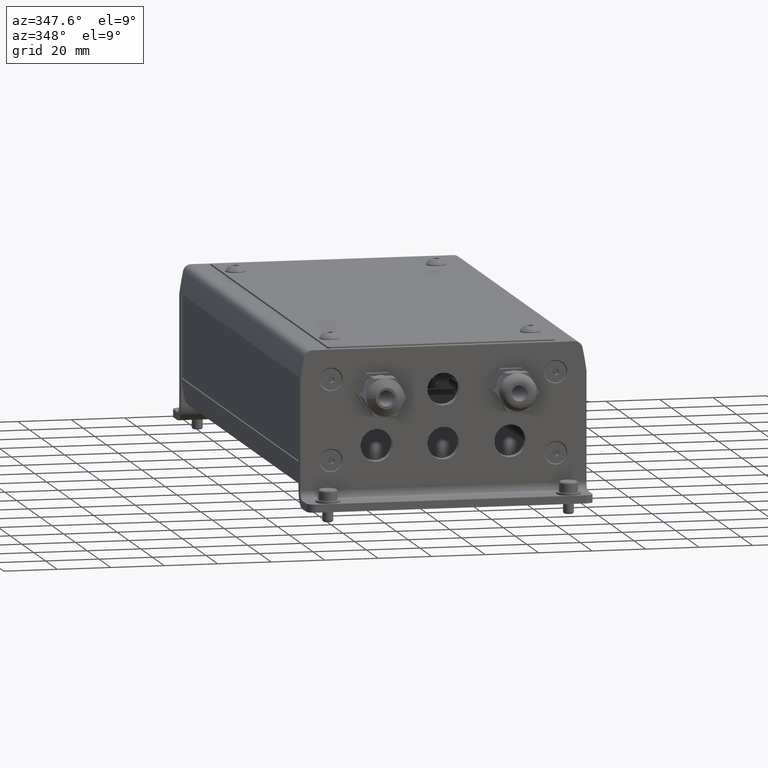
[diagram: clean part render]
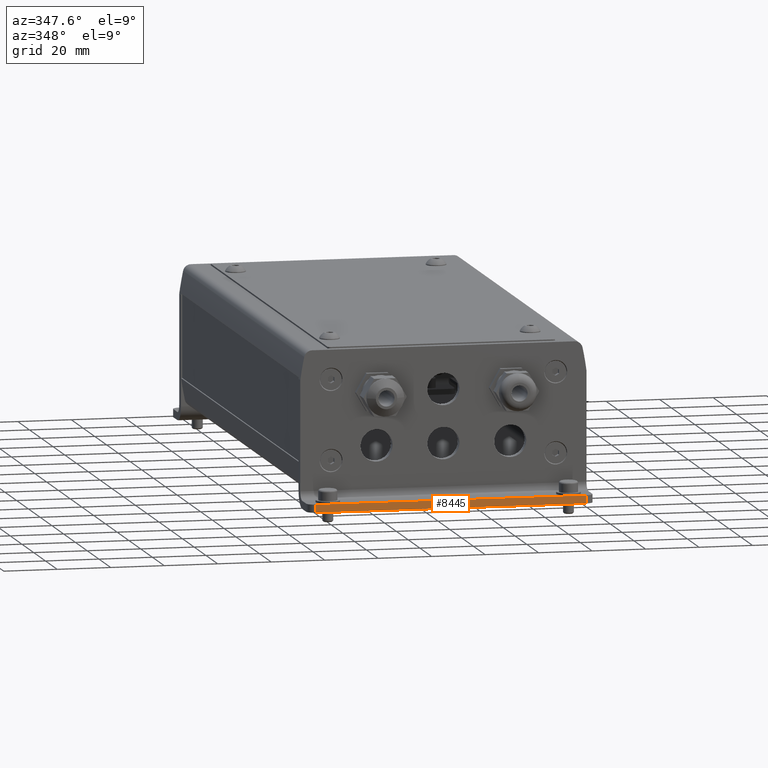
[diagram: same view with one face highlighted and labeled with its STEP entity id]
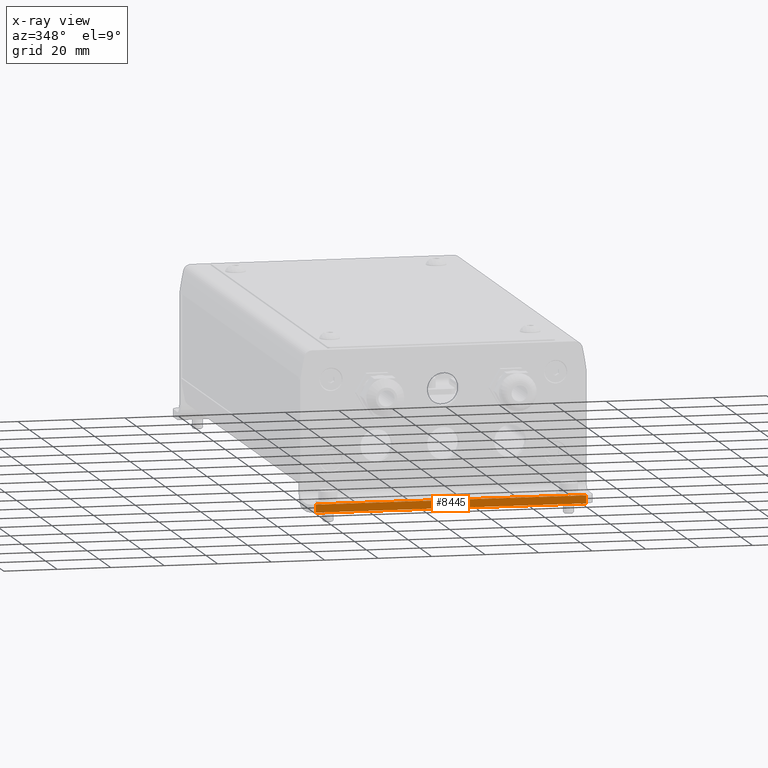
[diagram: x-ray of the same camera — body ghosted, the highlighted face saturated]
A machine part, auxiliary view. The second image highlights one B-rep face of the part: STEP entity #8445.
The next image is the same camera in x-ray: the body ghosted, the highlighted face saturated — about 0% of this face is hidden behind the body in this view.
In plain terms, the highlighted planar face has unit normal (-0, 1, -0).
Its self-contained STEP definition (entity closure, byte-faithful):
#8098=CARTESIAN_POINT('',(49.500000000000270,-24.999999999999581,-14.0));
#8099=VERTEX_POINT('',#8098);
#8107=CARTESIAN_POINT('',(-51.499999999999673,-24.999999999999581,-14.0));
#8108=VERTEX_POINT('',#8107);
#8109=CARTESIAN_POINT('',(49.500000000000270,-24.999999999999581,-14.0));
#8110=DIRECTION('',(-1.0,0.0,0.0));
#8111=VECTOR('',#8110,100.999999999999940);
#8112=LINE('',#8109,#8111);
#8113=EDGE_CURVE('',#8099,#8108,#8112,.T.);
#8404=CARTESIAN_POINT('',(49.500000000000263,-27.999999999999588,-14.0));
#8405=VERTEX_POINT('',#8404);
#8413=CARTESIAN_POINT('',(49.500000000000263,-27.999999999999588,-14.0));
#8414=DIRECTION('',(0.0,1.0,0.0));
#8415=VECTOR('',#8414,3.000000000000007);
#8416=LINE('',#8413,#8415);
#8417=EDGE_CURVE('',#8405,#8099,#8416,.T.);
#8422=CARTESIAN_POINT('',(-0.999999999999667,-26.499999999999584,-14.0));
#8423=DIRECTION('',(0.0,0.0,1.0));
#8424=DIRECTION('',(1.0,0.0,0.0));
#8425=AXIS2_PLACEMENT_3D('',#8422,#8423,#8424);
#8426=PLANE('',#8425);
#8427=ORIENTED_EDGE('',*,*,#8417,.F.);
#8428=CARTESIAN_POINT('',(-51.499999999999673,-27.999999999999588,-14.0));
#8429=VERTEX_POINT('',#8428);
#8430=CARTESIAN_POINT('',(-51.499999999999673,-27.999999999999588,-14.0));
#8431=DIRECTION('',(1.0,0.0,0.0));
#8432=VECTOR('',#8431,100.999999999999940);
#8433=LINE('',#8430,#8432);
#8434=EDGE_CURVE('',#8429,#8405,#8433,.T.);
#8435=ORIENTED_EDGE('',*,*,#8434,.F.);
#8436=CARTESIAN_POINT('',(-51.499999999999673,-24.999999999999581,-14.0));
#8437=DIRECTION('',(0.0,-1.0,0.0));
#8438=VECTOR('',#8437,3.000000000000007);
#8439=LINE('',#8436,#8438);
#8440=EDGE_CURVE('',#8108,#8429,#8439,.T.);
#8441=ORIENTED_EDGE('',*,*,#8440,.F.);
#8442=ORIENTED_EDGE('',*,*,#8113,.F.);
#8443=EDGE_LOOP('',(#8427,#8435,#8441,#8442));
#8444=FACE_OUTER_BOUND('',#8443,.T.);
#8445=ADVANCED_FACE('',(#8444),#8426,.F.);